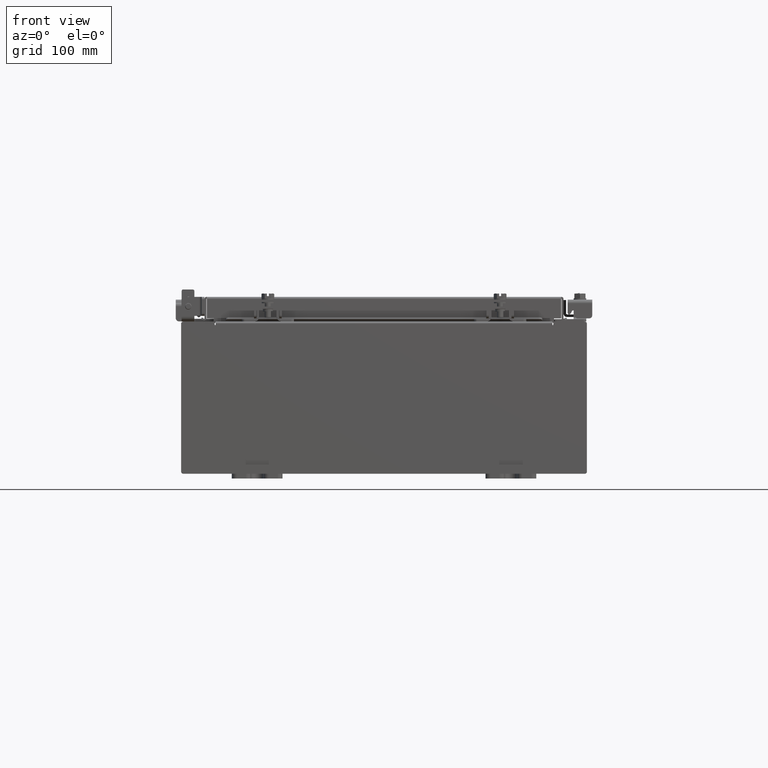
[diagram: clean part render]
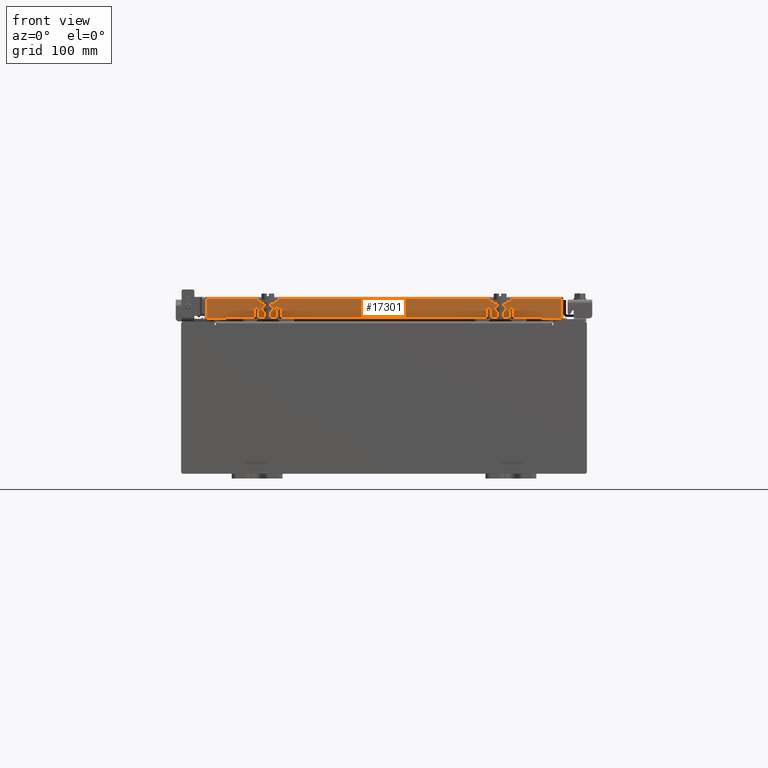
[diagram: same view with one face highlighted and labeled with its STEP entity id]
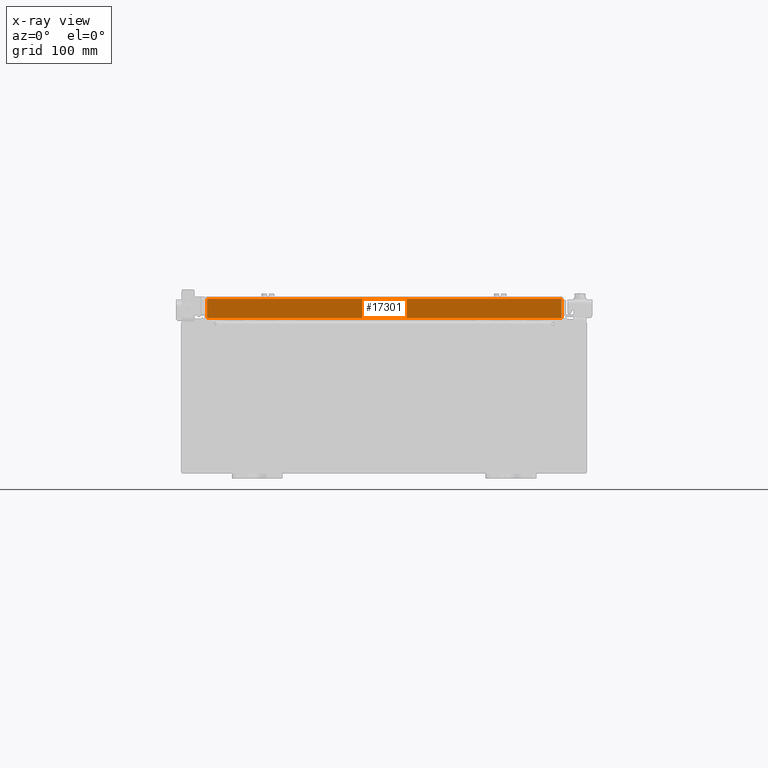
[diagram: x-ray of the same camera — body ghosted, the highlighted face saturated]
A machine part, front view. The second image highlights one B-rep face of the part: STEP entity #17301.
The next image is the same camera in x-ray: the body ghosted, the highlighted face saturated — about 0% of this face is hidden behind the body in this view.
In plain terms, the highlighted planar face has unit normal (-0, 1, -0).
Its self-contained STEP definition (entity closure, byte-faithful):
#154 = LINE ( 'NONE', #20166, #22162 ) ;
#303 = CARTESIAN_POINT ( 'NONE',  ( 7.077999999999995900, -9.094000000000003000, -0.08770000000000026400 ) ) ;
#1116 = DIRECTION ( 'NONE',  ( -1.000000000000000000, 0.0000000000000000000, 0.0000000000000000000 ) ) ;
#1372 = VECTOR ( 'NONE', #1116, 39.37007874015748100 ) ;
#1637 = DIRECTION ( 'NONE',  ( 0.0000000000000000000, -2.818880942772360100E-015, -1.000000000000000000 ) ) ;
#2487 = LINE ( 'NONE', #13789, #15789 ) ;
#2640 = EDGE_CURVE ( 'NONE', #12973, #17986, #10616, .T. ) ;
#3024 = ORIENTED_EDGE ( 'NONE', *, *, #4074, .T. ) ;
#3743 = DIRECTION ( 'NONE',  ( 1.000000000000000000, 3.535949605205719200E-031, -9.638176865770768000E-046 ) ) ;
#4031 = CARTESIAN_POINT ( 'NONE',  ( 0.0000000000000000000, -9.094000000000003000, 2.622574073917692700E-014 ) ) ;
#4074 = EDGE_CURVE ( 'NONE', #13995, #13124, #2487, .T. ) ;
#4113 = LINE ( 'NONE', #303, #16861 ) ;
#5687 = PLANE ( 'NONE',  #16922 ) ;
#5773 = DIRECTION ( 'NONE',  ( 0.0000000000000000000, 2.818880942772360100E-015, 1.000000000000000000 ) ) ;
#6013 = ORIENTED_EDGE ( 'NONE', *, *, #11314, .F. ) ;
#7035 = ORIENTED_EDGE ( 'NONE', *, *, #9603, .F. ) ;
#7786 = EDGE_CURVE ( 'NONE', #13995, #9267, #4113, .T. ) ;
#8014 = DIRECTION ( 'NONE',  ( -0.0000000000000000000, -2.818880942772360100E-015, -1.000000000000000000 ) ) ;
#8354 = EDGE_CURVE ( 'NONE', #17986, #13124, #22011, .T. ) ;
#8705 = CARTESIAN_POINT ( 'NONE',  ( 6.239157864376263500, -9.094000000000001200, -0.8499999999999999800 ) ) ;
#9225 = CARTESIAN_POINT ( 'NONE',  ( -6.239157864376270600, -9.094000000000001200, -0.8499999999999999800 ) ) ;
#9267 = VERTEX_POINT ( 'NONE', #12499 ) ;
#9603 = EDGE_CURVE ( 'NONE', #22321, #12973, #13007, .T. ) ;
#10616 = LINE ( 'NONE', #20485, #1372 ) ;
#11002 = ORIENTED_EDGE ( 'NONE', *, *, #7786, .F. ) ;
#11314 = EDGE_CURVE ( 'NONE', #9267, #22321, #154, .T. ) ;
#12000 = ORIENTED_EDGE ( 'NONE', *, *, #2640, .F. ) ;
#12163 = CARTESIAN_POINT ( 'NONE',  ( -6.989157864376271500, -9.094000000000003000, -0.08770000000000026400 ) ) ;
#12499 = CARTESIAN_POINT ( 'NONE',  ( 6.989157864376266200, -9.094000000000003000, -0.08770000000000026400 ) ) ;
#12781 = VECTOR ( 'NONE', #17472, 39.37007874015748100 ) ;
#12973 = VERTEX_POINT ( 'NONE', #8705 ) ;
#13007 = LINE ( 'NONE', #20453, #21710 ) ;
#13124 = VERTEX_POINT ( 'NONE', #14621 ) ;
#13357 = FACE_OUTER_BOUND ( 'NONE', #19121, .T. ) ;
#13789 = CARTESIAN_POINT ( 'NONE',  ( -6.989157864376271500, -9.094000000000003000, 2.622574073917692700E-014 ) ) ;
#13995 = VERTEX_POINT ( 'NONE', #12163 ) ;
#14621 = CARTESIAN_POINT ( 'NONE',  ( -6.989157864376270600, -9.094000000000004700, -0.8499999999999977600 ) ) ;
#15789 = VECTOR ( 'NONE', #1637, 39.37007874015748100 ) ;
#16164 = DIRECTION ( 'NONE',  ( -3.535949605205718300E-031, 1.000000000000000000, -2.818880942772360100E-015 ) ) ;
#16861 = VECTOR ( 'NONE', #3743, 39.37007874015748100 ) ;
#16922 = AXIS2_PLACEMENT_3D ( 'NONE', #4031, #16164, #5773 ) ;
#17055 = CARTESIAN_POINT ( 'NONE',  ( 6.989157864376266200, -9.094000000000004700, -0.8499999999999999800 ) ) ;
#17301 = ADVANCED_FACE ( 'NONE', ( #13357 ), #5687, .F. ) ;
#17472 = DIRECTION ( 'NONE',  ( -1.000000000000000000, -0.0000000000000000000, 1.254380613084043100E-016 ) ) ;
#17986 = VERTEX_POINT ( 'NONE', #9225 ) ;
#19121 = EDGE_LOOP ( 'NONE', ( #11002, #3024, #20862, #12000, #7035, #6013 ) ) ;
#19218 = CARTESIAN_POINT ( 'NONE',  ( 7.077999999999995000, -9.094000000000004700, -0.8499999999999999800 ) ) ;
#20166 = CARTESIAN_POINT ( 'NONE',  ( 6.989157864376266200, -9.094000000000003000, -0.07470000000000015500 ) ) ;
#20453 = CARTESIAN_POINT ( 'NONE',  ( 7.077999999999995000, -9.094000000000004700, -0.8499999999999999800 ) ) ;
#20485 = CARTESIAN_POINT ( 'NONE',  ( 6.239157864376263500, -9.094000000000001200, -0.8499999999999999800 ) ) ;
#20862 = ORIENTED_EDGE ( 'NONE', *, *, #8354, .F. ) ;
#21710 = VECTOR ( 'NONE', #22178, 39.37007874015748100 ) ;
#22011 = LINE ( 'NONE', #19218, #12781 ) ;
#22162 = VECTOR ( 'NONE', #8014, 39.37007874015748100 ) ;
#22178 = DIRECTION ( 'NONE',  ( -1.000000000000000000, -0.0000000000000000000, 1.254380613084043100E-016 ) ) ;
#22321 = VERTEX_POINT ( 'NONE', #17055 ) ;